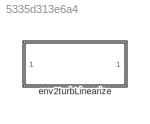
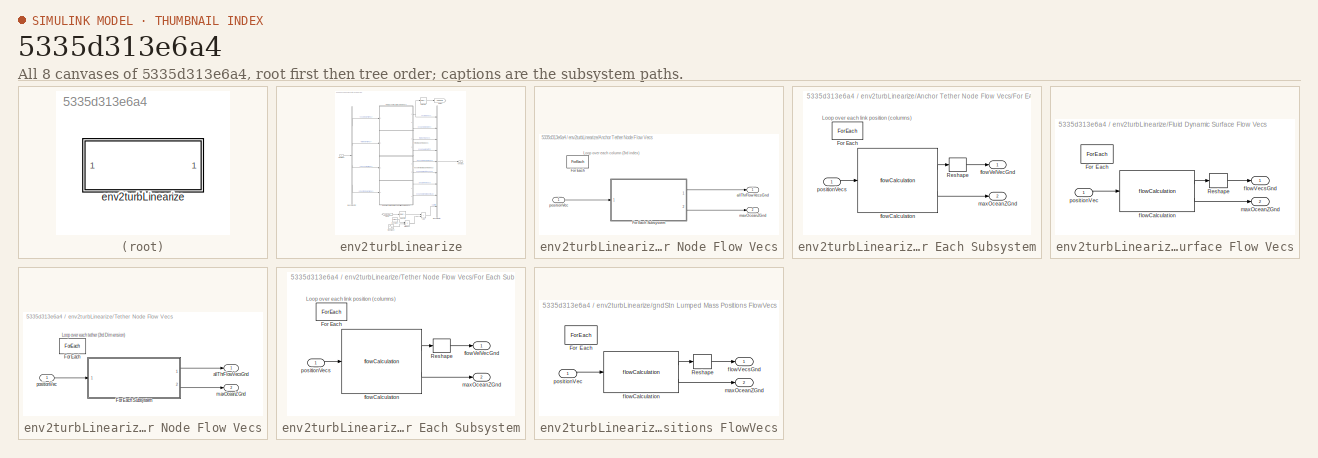
[diagram: thumbnail index - all 8 canvases of the model, root first then tree order]
MODEL slx_5335d313e6a4
KIND library
CONFIG AbsTol = auto
CONFIG EnableMultiTasking = off
CONFIG FixedStep = auto
CONFIG MaxStep = auto
CONFIG MinStep = auto
CONFIG RelTol = 1e-3
CONFIG SampleTimeConstraint = Unconstrained
CONFIG Solver = VariableStepAuto
CONFIG SolverName = VariableStepAuto
CONFIG StartTime = 0.0
CONFIG StopTime = 10.0
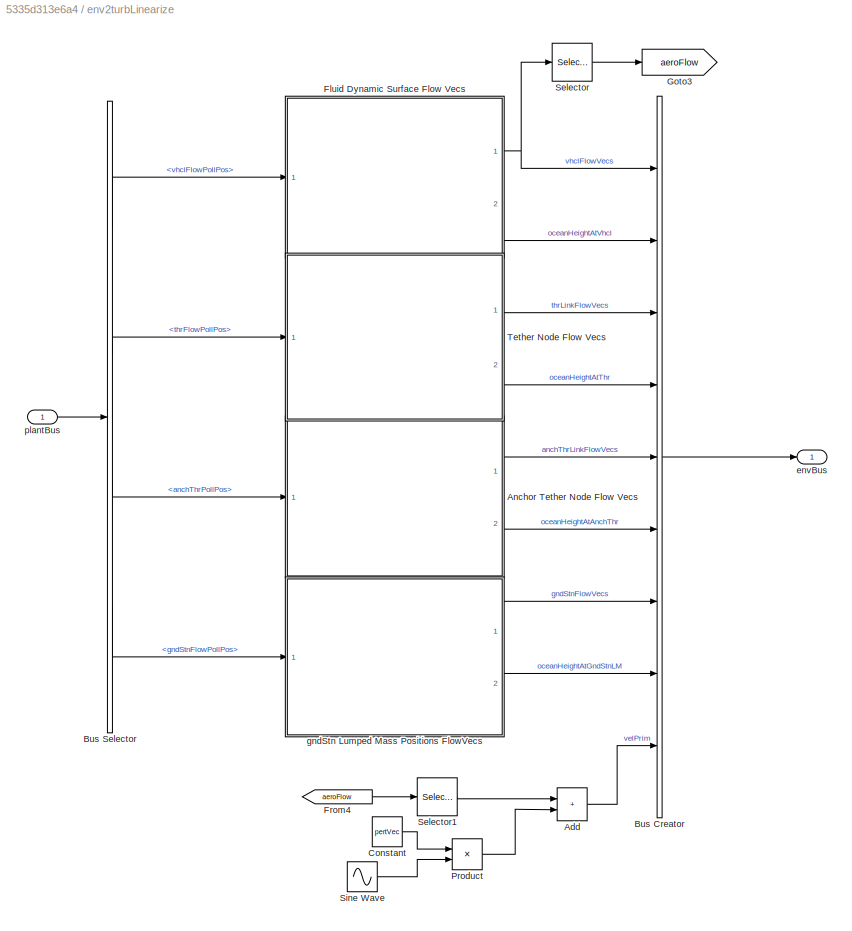
BLOCK [SubSystem] env2turbLinearize
  InitFcn = initializeBussesFromBlock(gcb)
  LoadFcn = initializeBussesFromBlock(gcb)
  MinAlgLoopOccurrences = on
  Ports = [1, 1]
  RequestExecContextInheritance = off
  StartFcn = initializeBussesFromBlock(gcb)
BLOCK [Sum] env2turbLinearize/Add
  IconShape = rectangular
  Ports = [2, 1]
BLOCK [SubSystem] env2turbLinearize/Anchor Tether Node Flow Vecs
  Ports = [1, 2]
  RequestExecContextInheritance = off
BLOCK [ForEach] env2turbLinearize/Anchor Tether Node Flow Vecs/For Each
  DisableCoverage = on
  Ports = []
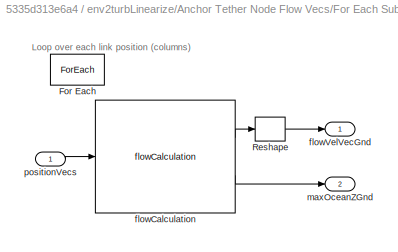
BLOCK [SubSystem] env2turbLinearize/Anchor Tether Node Flow Vecs/For Each Subsystem
  MinAlgLoopOccurrences = on
  Ports = [1, 2]
  RequestExecContextInheritance = off
BLOCK [ForEach] env2turbLinearize/Anchor Tether Node Flow Vecs/For Each Subsystem/For Each
  DisableCoverage = on
  Ports = []
BLOCK [Reshape] env2turbLinearize/Anchor Tether Node Flow Vecs/For Each Subsystem/Reshape
  OutputDimensionality = Column vector (2-D)
  Ports = [1, 1]
BLOCK [Reference] env2turbLinearize/Anchor Tether Node Flow Vecs/For Each Subsystem/flowCalculation  REF=flowcalculation_cl/flowCalculation
  Ports = [1, 2]
  SourceBlock = flowcalculation_cl/flowCalculation
  SourceType = SubSystem
BLOCK [Outport] env2turbLinearize/Anchor Tether Node Flow Vecs/For Each Subsystem/flowVelVecGnd
  ConcatenationDimension = 2
  VectorParamsAs1DForOutWhenUnconnected = off
BLOCK [Outport] env2turbLinearize/Anchor Tether Node Flow Vecs/For Each Subsystem/maxOceanZGnd
  ConcatenationDimension = 1
  Port = 2
  VectorParamsAs1DForOutWhenUnconnected = off
BLOCK [Inport] env2turbLinearize/Anchor Tether Node Flow Vecs/For Each Subsystem/positionVecs
  Partition = on
  PartitionDimension = 2
  PartitionOffset = 0
  PartitionWidth = 1
BLOCK [Outport] env2turbLinearize/Anchor Tether Node Flow Vecs/allThrFlowVecsGnd
  ConcatenationDimension = 3
  VectorParamsAs1DForOutWhenUnconnected = off
BLOCK [Outport] env2turbLinearize/Anchor Tether Node Flow Vecs/maxOceanZGnd
  ConcatenationDimension = 1
  Port = 2
  VectorParamsAs1DForOutWhenUnconnected = off
BLOCK [Inport] env2turbLinearize/Anchor Tether Node Flow Vecs/positionVec
  Partition = on
  PartitionDimension = 3
  PartitionOffset = 0
  PartitionWidth = 1
BLOCK [BusCreator] env2turbLinearize/Bus Creator
  DisplayOption = bar
  InheritFromInputs = on
  Inputs = 9
  NonVirtualBus = on
  OutDataTypeStr = Bus: envBus
  Ports = [9, 1]
BLOCK [BusSelector] env2turbLinearize/Bus Selector
  OutputSignals = vhclFlowPollPos,thrFlowPollPos,anchThrPollPos,gndStnFlowPollPos
  Ports = [1, 4]
BLOCK [Constant] env2turbLinearize/Constant
  Value = pertVec
BLOCK [SubSystem] env2turbLinearize/Fluid Dynamic Surface Flow Vecs
  MinAlgLoopOccurrences = on
  Ports = [1, 2]
  RequestExecContextInheritance = off
BLOCK [ForEach] env2turbLinearize/Fluid Dynamic Surface Flow Vecs/For Each
  DisableCoverage = on
  Ports = []
BLOCK [Reshape] env2turbLinearize/Fluid Dynamic Surface Flow Vecs/Reshape
  OutputDimensionality = Column vector (2-D)
  Ports = [1, 1]
BLOCK [Reference] env2turbLinearize/Fluid Dynamic Surface Flow Vecs/flowCalculation  REF=flowcalculation_cl/flowCalculation
  Ports = [1, 2]
  SourceBlock = flowcalculation_cl/flowCalculation
  SourceType = SubSystem
BLOCK [Outport] env2turbLinearize/Fluid Dynamic Surface Flow Vecs/flowVecsGnd
  ConcatenationDimension = 2
  VectorParamsAs1DForOutWhenUnconnected = off
BLOCK [Outport] env2turbLinearize/Fluid Dynamic Surface Flow Vecs/maxOceanZGnd
  ConcatenationDimension = 1
  Port = 2
  VectorParamsAs1DForOutWhenUnconnected = off
BLOCK [Inport] env2turbLinearize/Fluid Dynamic Surface Flow Vecs/positionVec
  Partition = on
  PartitionDimension = 2
  PartitionOffset = 0
  PartitionWidth = 1
BLOCK [From] env2turbLinearize/From4
  GotoTag = aeroFlow
BLOCK [Goto] env2turbLinearize/Goto3
  GotoTag = aeroFlow
BLOCK [Product] env2turbLinearize/Product
  Ports = [2, 1]
BLOCK [Selector] env2turbLinearize/Selector
  IndexOptions = Select all,Index vector (dialog)
  Indices = [1 3],[1 2 3 4]
  InputPortWidth = [13 3]
  NumberOfDimensions = 2
  OutputSizes = 1,1
  Ports = [1, 1]
BLOCK [Selector] env2turbLinearize/Selector1
  IndexOptions = Select all,Index vector (dialog)
  Indices = [1 3],1
  InputPortWidth = 3
  NumberOfDimensions = 2
  OutputSizes = 1,1
  Ports = [1, 1]
BLOCK [Sin] env2turbLinearize/Sine Wave
  Amplitude = distAmp*flwSpd
  Frequency = distFreq*2*pi
  Ports = [0, 1]
  SampleTime = [0,1]
BLOCK [SubSystem] env2turbLinearize/Tether Node Flow Vecs
  MinAlgLoopOccurrences = on
  Ports = [1, 2]
  RequestExecContextInheritance = off
BLOCK [ForEach] env2turbLinearize/Tether Node Flow Vecs/For Each
  DisableCoverage = on
  Ports = []
BLOCK [SubSystem] env2turbLinearize/Tether Node Flow Vecs/For Each Subsystem
  MinAlgLoopOccurrences = on
  Ports = [1, 2]
  RequestExecContextInheritance = off
BLOCK [ForEach] env2turbLinearize/Tether Node Flow Vecs/For Each Subsystem/For Each
  DisableCoverage = on
  Ports = []
BLOCK [Reshape] env2turbLinearize/Tether Node Flow Vecs/For Each Subsystem/Reshape
  OutputDimensionality = Column vector (2-D)
  Ports = [1, 1]
BLOCK [Reference] env2turbLinearize/Tether Node Flow Vecs/For Each Subsystem/flowCalculation  REF=flowcalculation_cl/flowCalculation
  Ports = [1, 2]
  SourceBlock = flowcalculation_cl/flowCalculation
  SourceType = SubSystem
BLOCK [Outport] env2turbLinearize/Tether Node Flow Vecs/For Each Subsystem/flowVelVecGnd
  ConcatenationDimension = 2
  VectorParamsAs1DForOutWhenUnconnected = off
BLOCK [Outport] env2turbLinearize/Tether Node Flow Vecs/For Each Subsystem/maxOceanZGnd
  ConcatenationDimension = 1
  Port = 2
  VectorParamsAs1DForOutWhenUnconnected = off
BLOCK [Inport] env2turbLinearize/Tether Node Flow Vecs/For Each Subsystem/positionVecs
  Partition = on
  PartitionDimension = 2
  PartitionOffset = 0
  PartitionWidth = 1
BLOCK [Outport] env2turbLinearize/Tether Node Flow Vecs/allThrFlowVecsGnd
  ConcatenationDimension = 3
  VectorParamsAs1DForOutWhenUnconnected = off
BLOCK [Outport] env2turbLinearize/Tether Node Flow Vecs/maxOceanZGnd
  ConcatenationDimension = 1
  Port = 2
  VectorParamsAs1DForOutWhenUnconnected = off
BLOCK [Inport] env2turbLinearize/Tether Node Flow Vecs/positionVec
  Partition = on
  PartitionDimension = 3
  PartitionOffset = 0
  PartitionWidth = 1
BLOCK [Outport] env2turbLinearize/envBus
  OutDataTypeStr = Bus: envBus
  VectorParamsAs1DForOutWhenUnconnected = off
BLOCK [SubSystem] env2turbLinearize/gndStn Lumped Mass Positions FlowVecs
  MinAlgLoopOccurrences = on
  Ports = [1, 2]
  RequestExecContextInheritance = off
BLOCK [ForEach] env2turbLinearize/gndStn Lumped Mass Positions FlowVecs/For Each
  DisableCoverage = on
  Ports = []
BLOCK [Reshape] env2turbLinearize/gndStn Lumped Mass Positions FlowVecs/Reshape
  OutputDimensionality = Column vector (2-D)
  Ports = [1, 1]
BLOCK [Reference] env2turbLinearize/gndStn Lumped Mass Positions FlowVecs/flowCalculation  REF=flowcalculation_cl/flowCalculation
  Ports = [1, 2]
  SourceBlock = flowcalculation_cl/flowCalculation
  SourceType = SubSystem
BLOCK [Outport] env2turbLinearize/gndStn Lumped Mass Positions FlowVecs/flowVecsGnd
  ConcatenationDimension = 2
  VectorParamsAs1DForOutWhenUnconnected = off
BLOCK [Outport] env2turbLinearize/gndStn Lumped Mass Positions FlowVecs/maxOceanZGnd
  ConcatenationDimension = 1
  Port = 2
  VectorParamsAs1DForOutWhenUnconnected = off
BLOCK [Inport] env2turbLinearize/gndStn Lumped Mass Positions FlowVecs/positionVec
  Partition = on
  PartitionDimension = 2
  PartitionOffset = 0
  PartitionWidth = 1
BLOCK [Inport] env2turbLinearize/plantBus
  OutDataTypeStr = Bus: plantBus
ANNOTATION env2turbLinearize/Anchor Tether Node Flow Vecs: Loop over each column (3rd index)
ANNOTATION env2turbLinearize/Anchor Tether Node Flow Vecs/For Each Subsystem: Loop over each link position (columns)
ANNOTATION env2turbLinearize/Tether Node Flow Vecs: Loop over each tether (3rd Dimension)
ANNOTATION env2turbLinearize/Tether Node Flow Vecs/For Each Subsystem: Loop over each link position (columns)
LINE env2turbLinearize/Add:1 -> env2turbLinearize/Bus Creator:9
LINE env2turbLinearize/Anchor Tether Node Flow Vecs/For Each Subsystem/Reshape:1 -> env2turbLinearize/Anchor Tether Node Flow Vecs/For Each Subsystem/flowVelVecGnd:1
LINE env2turbLinearize/Anchor Tether Node Flow Vecs/For Each Subsystem/flowCalculation:1 -> env2turbLinearize/Anchor Tether Node Flow Vecs/For Each Subsystem/Reshape:1
LINE env2turbLinearize/Anchor Tether Node Flow Vecs/For Each Subsystem/flowCalculation:2 -> env2turbLinearize/Anchor Tether Node Flow Vecs/For Each Subsystem/maxOceanZGnd:1
LINE env2turbLinearize/Anchor Tether Node Flow Vecs/For Each Subsystem/positionVecs:1 -> env2turbLinearize/Anchor Tether Node Flow Vecs/For Each Subsystem/flowCalculation:1
LINE env2turbLinearize/Anchor Tether Node Flow Vecs/For Each Subsystem:1 -> env2turbLinearize/Anchor Tether Node Flow Vecs/allThrFlowVecsGnd:1
LINE env2turbLinearize/Anchor Tether Node Flow Vecs/For Each Subsystem:2 -> env2turbLinearize/Anchor Tether Node Flow Vecs/maxOceanZGnd:1
LINE env2turbLinearize/Anchor Tether Node Flow Vecs/positionVec:1 -> env2turbLinearize/Anchor Tether Node Flow Vecs/For Each Subsystem:1
LINE env2turbLinearize/Anchor Tether Node Flow Vecs:1 -> env2turbLinearize/Bus Creator:5
LINE env2turbLinearize/Anchor Tether Node Flow Vecs:2 -> env2turbLinearize/Bus Creator:6
LINE env2turbLinearize/Bus Creator:1 -> env2turbLinearize/envBus:1
LINE env2turbLinearize/Bus Selector:1 -> env2turbLinearize/Fluid Dynamic Surface Flow Vecs:1
LINE env2turbLinearize/Bus Selector:2 -> env2turbLinearize/Tether Node Flow Vecs:1
LINE env2turbLinearize/Bus Selector:3 -> env2turbLinearize/Anchor Tether Node Flow Vecs:1
LINE env2turbLinearize/Bus Selector:4 -> env2turbLinearize/gndStn Lumped Mass Positions FlowVecs:1
LINE env2turbLinearize/Constant:1 -> env2turbLinearize/Product:1
LINE env2turbLinearize/Fluid Dynamic Surface Flow Vecs/Reshape:1 -> env2turbLinearize/Fluid Dynamic Surface Flow Vecs/flowVecsGnd:1
LINE env2turbLinearize/Fluid Dynamic Surface Flow Vecs/flowCalculation:1 -> env2turbLinearize/Fluid Dynamic Surface Flow Vecs/Reshape:1
LINE env2turbLinearize/Fluid Dynamic Surface Flow Vecs/flowCalculation:2 -> env2turbLinearize/Fluid Dynamic Surface Flow Vecs/maxOceanZGnd:1
LINE env2turbLinearize/Fluid Dynamic Surface Flow Vecs/positionVec:1 -> env2turbLinearize/Fluid Dynamic Surface Flow Vecs/flowCalculation:1
NET env2turbLinearize/Fluid Dynamic Surface Flow Vecs:1 -> env2turbLinearize/Bus Creator:1, env2turbLinearize/Selector:1
LINE env2turbLinearize/Fluid Dynamic Surface Flow Vecs:2 -> env2turbLinearize/Bus Creator:2
LINE env2turbLinearize/From4:1 -> env2turbLinearize/Selector1:1
LINE env2turbLinearize/Product:1 -> env2turbLinearize/Add:2
LINE env2turbLinearize/Selector1:1 -> env2turbLinearize/Add:1
LINE env2turbLinearize/Selector:1 -> env2turbLinearize/Goto3:1
LINE env2turbLinearize/Sine Wave:1 -> env2turbLinearize/Product:2
LINE env2turbLinearize/Tether Node Flow Vecs/For Each Subsystem/Reshape:1 -> env2turbLinearize/Tether Node Flow Vecs/For Each Subsystem/flowVelVecGnd:1
LINE env2turbLinearize/Tether Node Flow Vecs/For Each Subsystem/flowCalculation:1 -> env2turbLinearize/Tether Node Flow Vecs/For Each Subsystem/Reshape:1
LINE env2turbLinearize/Tether Node Flow Vecs/For Each Subsystem/flowCalculation:2 -> env2turbLinearize/Tether Node Flow Vecs/For Each Subsystem/maxOceanZGnd:1
LINE env2turbLinearize/Tether Node Flow Vecs/For Each Subsystem/positionVecs:1 -> env2turbLinearize/Tether Node Flow Vecs/For Each Subsystem/flowCalculation:1
LINE env2turbLinearize/Tether Node Flow Vecs/For Each Subsystem:1 -> env2turbLinearize/Tether Node Flow Vecs/allThrFlowVecsGnd:1
LINE env2turbLinearize/Tether Node Flow Vecs/For Each Subsystem:2 -> env2turbLinearize/Tether Node Flow Vecs/maxOceanZGnd:1
LINE env2turbLinearize/Tether Node Flow Vecs/positionVec:1 -> env2turbLinearize/Tether Node Flow Vecs/For Each Subsystem:1
LINE env2turbLinearize/Tether Node Flow Vecs:1 -> env2turbLinearize/Bus Creator:3
LINE env2turbLinearize/Tether Node Flow Vecs:2 -> env2turbLinearize/Bus Creator:4
LINE env2turbLinearize/gndStn Lumped Mass Positions FlowVecs/Reshape:1 -> env2turbLinearize/gndStn Lumped Mass Positions FlowVecs/flowVecsGnd:1
LINE env2turbLinearize/gndStn Lumped Mass Positions FlowVecs/flowCalculation:1 -> env2turbLinearize/gndStn Lumped Mass Positions FlowVecs/Reshape:1
LINE env2turbLinearize/gndStn Lumped Mass Positions FlowVecs/flowCalculation:2 -> env2turbLinearize/gndStn Lumped Mass Positions FlowVecs/maxOceanZGnd:1
LINE env2turbLinearize/gndStn Lumped Mass Positions FlowVecs/positionVec:1 -> env2turbLinearize/gndStn Lumped Mass Positions FlowVecs/flowCalculation:1
LINE env2turbLinearize/gndStn Lumped Mass Positions FlowVecs:1 -> env2turbLinearize/Bus Creator:7
LINE env2turbLinearize/gndStn Lumped Mass Positions FlowVecs:2 -> env2turbLinearize/Bus Creator:8
LINE env2turbLinearize/plantBus:1 -> env2turbLinearize/Bus Selector:1
note: NET lines group one-source signal fan-out (src -> all destinations, sorted); 1:1 wires keep LINE
